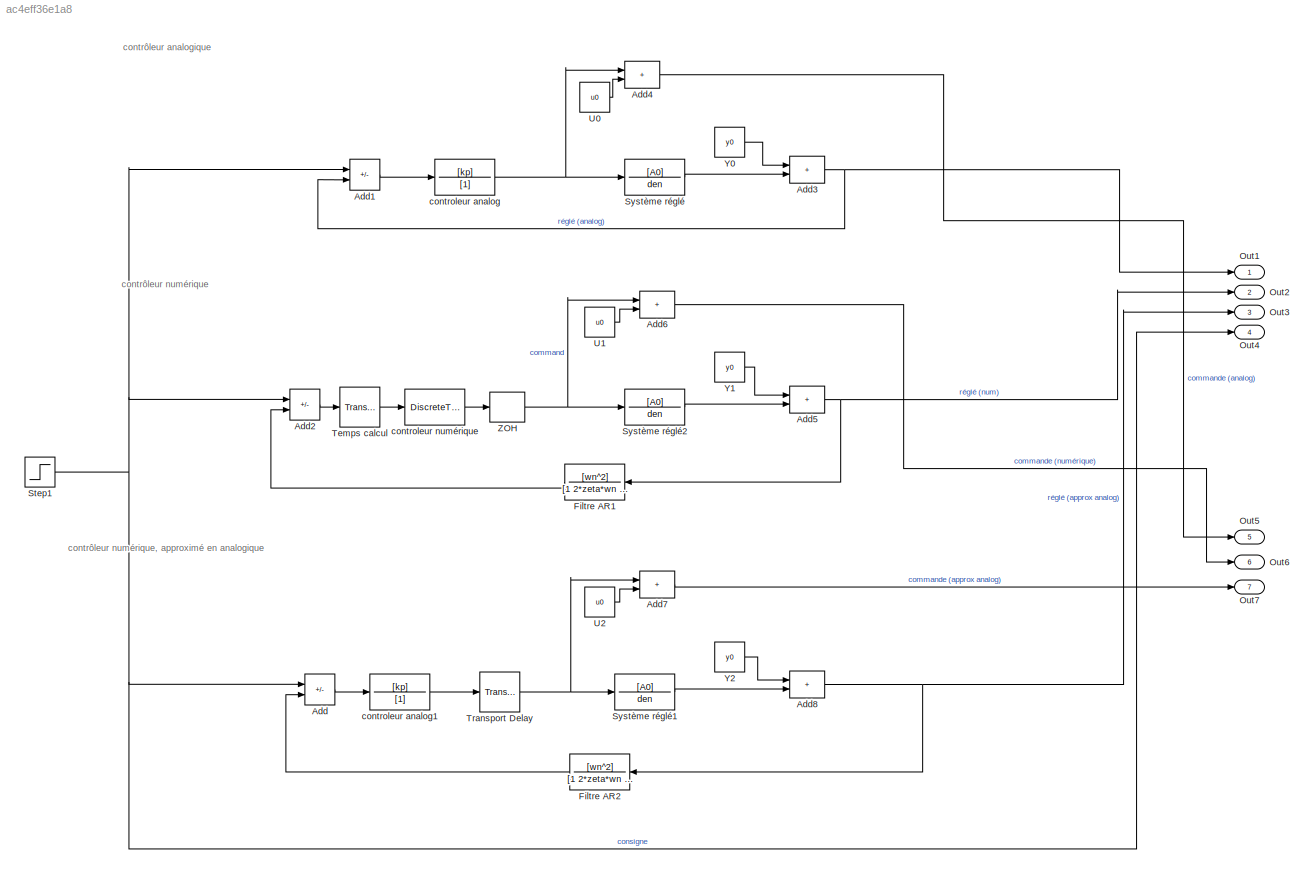
MODEL slx_ac4eff36e1a8
KIND model
CONFIG AbsTol = auto
CONFIG EnableMultiTasking = off
CONFIG FixedStep = 0.001
CONFIG MaxStep = auto
CONFIG MinStep = auto
CONFIG RelTol = 1e-3
CONFIG SampleTimeConstraint = Unconstrained
CONFIG SolverName = VariableStepAuto
CONFIG StartTime = 0.0
CONFIG StopTime = 120
BLOCK [Sum] Add
  IconShape = rectangular
  Inputs = +-
BLOCK [Sum] Add1
  IconShape = rectangular
  Inputs = +-
BLOCK [Sum] Add2
  IconShape = rectangular
  Inputs = +-
BLOCK [Sum] Add3
  IconShape = rectangular
BLOCK [Sum] Add4
  IconShape = rectangular
BLOCK [Sum] Add5
  IconShape = rectangular
BLOCK [Sum] Add6
  IconShape = rectangular
BLOCK [Sum] Add7
  IconShape = rectangular
BLOCK [Sum] Add8
  IconShape = rectangular
BLOCK [TransferFcn] Filtre AR1
  Denominator = [1 2*zeta*wn wn^2]
  Numerator = [wn^2]
BLOCK [TransferFcn] Filtre AR2
  Denominator = [1 2*zeta*wn wn^2]
  Numerator = [wn^2]
BLOCK [Outport] Out1
BLOCK [Outport] Out2
  Port = 2
BLOCK [Outport] Out3
  Port = 3
BLOCK [Outport] Out4
  Port = 4
BLOCK [Outport] Out5
  Port = 5
BLOCK [Outport] Out6
  Port = 6
BLOCK [Outport] Out7
  Port = 7
BLOCK [Step] Step1
  After = y0+echelon
  Before = y0
  SampleTime = 0
BLOCK [TransferFcn] Système réglé
  Denominator = den
  Numerator = [A0]
BLOCK [TransferFcn] Système réglé1
  Denominator = den
  Numerator = [A0]
BLOCK [TransferFcn] Système réglé2
  Denominator = den
  Numerator = [A0]
BLOCK [TransportDelay] Temps calcul
  DelayTime = 1/(2*fs)
BLOCK [TransportDelay] Transport Delay
  DelayTime = 1/fs
BLOCK [Constant] U0
  Value = u0
BLOCK [Constant] U1
  Value = u0
BLOCK [Constant] U2
  Value = u0
BLOCK [Constant] Y0
  Value = y0
BLOCK [Constant] Y1
  Value = y0
BLOCK [Constant] Y2
  Value = y0
BLOCK [ZeroOrderHold] ZOH
  SampleTime = 1/fs
BLOCK [TransferFcn] controleur analog
  Denominator = [1]
  NameLocation = top
  Numerator = [kp]
BLOCK [TransferFcn] controleur analog1
  Denominator = [1]
  NameLocation = top
  Numerator = [kp]
BLOCK [DiscreteTransferFcn] controleur numérique
  Denominator = [1]
  InputPortMap = u0
  NameLocation = top
  Numerator = [kp]
  SampleTime = 1/fs
ANNOTATION (root): contrôleur analogique
ANNOTATION (root): contrôleur numérique
ANNOTATION (root): contrôleur numérique, approximé en analogique
LINE Add1:1 -> controleur analog:1
LINE Add2:1 -> Temps calcul:1
NET Add3:1 -> Add1:2, Out1:1
LINE Add4:1 -> Out5:1
NET Add5:1 -> Filtre AR1:1, Out2:1
LINE Add6:1 -> Out6:1
LINE Add7:1 -> Out7:1
NET Add8:1 -> Filtre AR2:1, Out3:1
LINE Add:1 -> controleur analog1:1
LINE Filtre AR1:1 -> Add2:2
LINE Filtre AR2:1 -> Add:2
NET Step1:1 -> Add1:1, Add2:1, Add:1, Out4:1
LINE Système réglé1:1 -> Add8:2
LINE Système réglé2:1 -> Add5:2
LINE Système réglé:1 -> Add3:2
LINE Temps calcul:1 -> controleur numérique:1
NET Transport Delay:1 -> Add7:1, Système réglé1:1
LINE U0:1 -> Add4:2
LINE U1:1 -> Add6:2
LINE U2:1 -> Add7:2
LINE Y0:1 -> Add3:1
LINE Y1:1 -> Add5:1
LINE Y2:1 -> Add8:1
NET ZOH:1 -> Add6:1, Système réglé2:1
LINE controleur analog1:1 -> Transport Delay:1
NET controleur analog:1 -> Add4:1, Système réglé:1
LINE controleur numérique:1 -> ZOH:1
note: NET lines group one-source signal fan-out (src -> all destinations, sorted); 1:1 wires keep LINE
